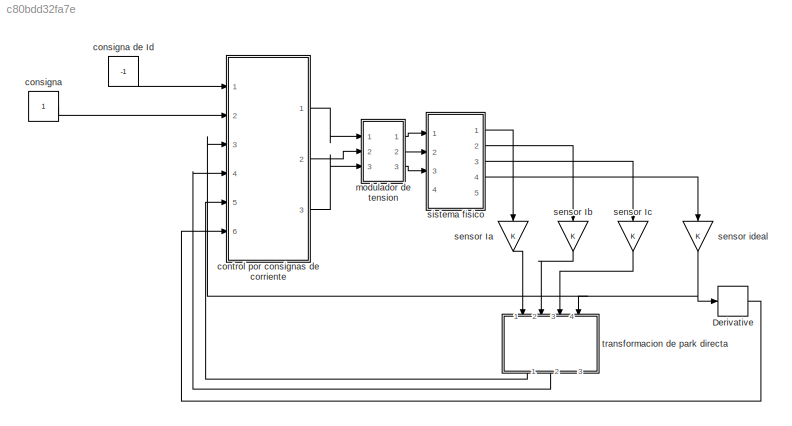
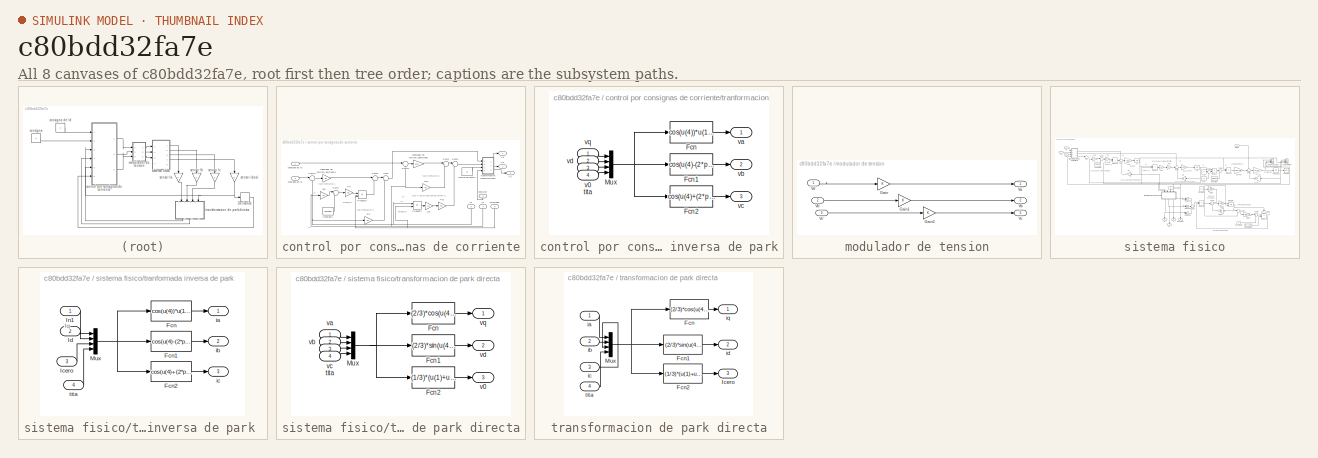
[diagram: thumbnail index - all 8 canvases of the model, root first then tree order]
MODEL slx_c80bdd32fa7e
KIND model
BLOCK [Derivative] Derivative
BLOCK [Constant] consigna
BLOCK [Constant] consigna de Id
  Value = -1
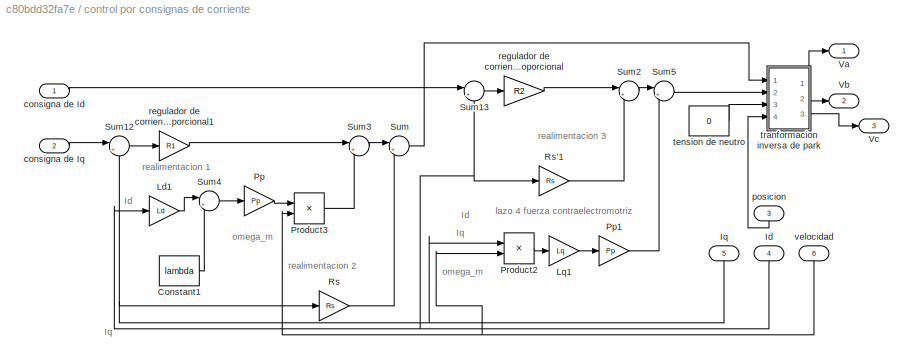
BLOCK [SubSystem] control por consignas de corriente
  FunctionWithSeparateData = off
  MaskHideContents = off
  MinAlgLoopOccurrences = off
  Opaque = off
  Ports = [6, 3]
  PropExecContextOutsideSubsystem = off
  RTWSystemCode = Auto
  RequestExecContextInheritance = off
BLOCK [Constant] control por consignas de corriente/Constant1
  Value = lambda
BLOCK [Inport] control por consignas de corriente/Id
  IconDisplay = Port number
  Port = 4
BLOCK [Inport] control por consignas de corriente/Iq
  IconDisplay = Port number
  Port = 5
BLOCK [Gain] control por consignas de corriente/Ld1
  Gain = Ld
  OutDataTypeStr = Inherit: Inherit via internal rule
  ParamDataTypeStr = Inherit: Inherit via internal rule
  SaturateOnIntegerOverflow = off
BLOCK [Gain] control por consignas de corriente/Lq1
  Gain = Lq
  OutDataTypeStr = Inherit: Inherit via internal rule
  ParamDataTypeStr = Inherit: Inherit via internal rule
  SaturateOnIntegerOverflow = off
BLOCK [Gain] control por consignas de corriente/Pp
  Gain = Pp
  OutDataTypeStr = Inherit: Inherit via internal rule
  ParamDataTypeStr = Inherit: Inherit via internal rule
  SaturateOnIntegerOverflow = off
BLOCK [Gain] control por consignas de corriente/Pp1
  Gain = Pp
  OutDataTypeStr = Inherit: Inherit via internal rule
  ParamDataTypeStr = Inherit: Inherit via internal rule
  SaturateOnIntegerOverflow = off
BLOCK [Product] control por consignas de corriente/Product2
  InputSameDT = off
  OutDataTypeStr = Inherit: Inherit via internal rule
  Ports = [2, 1]
  SaturateOnIntegerOverflow = off
BLOCK [Product] control por consignas de corriente/Product3
  InputSameDT = off
  OutDataTypeStr = Inherit: Inherit via internal rule
  Ports = [2, 1]
  SaturateOnIntegerOverflow = off
BLOCK [Gain] control por consignas de corriente/Rs
  Gain = Rs
  OutDataTypeStr = Inherit: Inherit via internal rule
  ParamDataTypeStr = Inherit: Inherit via internal rule
  SaturateOnIntegerOverflow = off
BLOCK [Gain] control por consignas de corriente/Rs'1
  Gain = Rs
  OutDataTypeStr = Inherit: Inherit via internal rule
  ParamDataTypeStr = Inherit: Inherit via internal rule
  SaturateOnIntegerOverflow = off
BLOCK [Sum] control por consignas de corriente/Sum
  IconShape = round
  InputSameDT = off
  Inputs = |++
  OutDataTypeStr = Inherit: Inherit via internal rule
  Ports = [2, 1]
  SaturateOnIntegerOverflow = off
BLOCK [Sum] control por consignas de corriente/Sum12
  IconShape = round
  InputSameDT = off
  Inputs = |+-
  OutDataTypeStr = Inherit: Inherit via internal rule
  Ports = [2, 1]
  SaturateOnIntegerOverflow = off
BLOCK [Sum] control por consignas de corriente/Sum13
  IconShape = round
  InputSameDT = off
  Inputs = |+-
  OutDataTypeStr = Inherit: Inherit via internal rule
  Ports = [2, 1]
  SaturateOnIntegerOverflow = off
BLOCK [Sum] control por consignas de corriente/Sum2
  IconShape = round
  InputSameDT = off
  Inputs = |++
  OutDataTypeStr = Inherit: Inherit via internal rule
  Ports = [2, 1]
  SaturateOnIntegerOverflow = off
BLOCK [Sum] control por consignas de corriente/Sum3
  IconShape = round
  InputSameDT = off
  Inputs = |++
  OutDataTypeStr = Inherit: Inherit via internal rule
  Ports = [2, 1]
  SaturateOnIntegerOverflow = off
BLOCK [Sum] control por consignas de corriente/Sum4
  IconShape = round
  InputSameDT = off
  Inputs = |++
  OutDataTypeStr = Inherit: Inherit via internal rule
  Ports = [2, 1]
  SaturateOnIntegerOverflow = off
BLOCK [Sum] control por consignas de corriente/Sum5
  IconShape = round
  InputSameDT = off
  Inputs = |+-
  OutDataTypeStr = Inherit: Inherit via internal rule
  Ports = [2, 1]
  SaturateOnIntegerOverflow = off
BLOCK [Outport] control por consignas de corriente/Va
  IconDisplay = Port number
BLOCK [Outport] control por consignas de corriente/Vb
  IconDisplay = Port number
  Port = 2
BLOCK [Outport] control por consignas de corriente/Vc
  IconDisplay = Port number
  Port = 3
BLOCK [Inport] control por consignas de corriente/consigna de Id
  IconDisplay = Port number
BLOCK [Inport] control por consignas de corriente/consigna de Iq
  IconDisplay = Port number
  Port = 2
BLOCK [Inport] control por consignas de corriente/posicion
  IconDisplay = Port number
  Port = 3
BLOCK [Gain] control por consignas de corriente/regulador de corriente ganacia proporcional
  Gain = R2
  OutDataTypeStr = Inherit: Inherit via internal rule
  ParamDataTypeStr = Inherit: Inherit via internal rule
  SaturateOnIntegerOverflow = off
BLOCK [Gain] control por consignas de corriente/regulador de corriente ganacia proporcional1
  Gain = R1
  OutDataTypeStr = Inherit: Inherit via internal rule
  ParamDataTypeStr = Inherit: Inherit via internal rule
  SaturateOnIntegerOverflow = off
BLOCK [Constant] control por consignas de corriente/tension de neutro
  Value = 0
BLOCK [SubSystem] control por consignas de corriente/tranformacion inversa de park
  FunctionWithSeparateData = off
  MaskHideContents = off
  MinAlgLoopOccurrences = off
  Opaque = off
  Ports = [4, 3]
  PropExecContextOutsideSubsystem = off
  RTWSystemCode = Auto
  RequestExecContextInheritance = off
BLOCK [Fcn] control por consignas de corriente/tranformacion inversa de park/Fcn
  Expr = cos(u(4))*u(1)+sin(u(4))*u(2)+u(3)
BLOCK [Fcn] control por consignas de corriente/tranformacion inversa de park/Fcn1
  Expr = cos(u(4)-(2*pi/3))*u(1)+sin(u(4)-(2*pi/3))*u(2)+u(3)
BLOCK [Fcn] control por consignas de corriente/tranformacion inversa de park/Fcn2
  Expr = cos(u(4)+(2*pi/3))*u(1)+sin(u(4)+(2*pi/3))*u(2)+u(3)
BLOCK [Mux] control por consignas de corriente/tranformacion inversa de park/Mux
  DisplayOption = bar
  Ports = [4, 1]
BLOCK [Inport] control por consignas de corriente/tranformacion inversa de park/tita
  IconDisplay = Port number
  Port = 4
BLOCK [Inport] control por consignas de corriente/tranformacion inversa de park/v0
  IconDisplay = Port number
  Port = 3
BLOCK [Outport] control por consignas de corriente/tranformacion inversa de park/va
  IconDisplay = Port number
BLOCK [Outport] control por consignas de corriente/tranformacion inversa de park/vb
  IconDisplay = Port number
  Port = 2
BLOCK [Outport] control por consignas de corriente/tranformacion inversa de park/vc
  IconDisplay = Port number
  Port = 3
BLOCK [Inport] control por consignas de corriente/tranformacion inversa de park/vd
  IconDisplay = Port number
  Port = 2
BLOCK [Inport] control por consignas de corriente/tranformacion inversa de park/vq
  IconDisplay = Port number
BLOCK [Inport] control por consignas de corriente/velocidad
  IconDisplay = Port number
  Port = 6
BLOCK [SubSystem] modulador de tension
  FunctionWithSeparateData = off
  MaskHideContents = off
  MinAlgLoopOccurrences = off
  Opaque = off
  Ports = [3, 3]
  PropExecContextOutsideSubsystem = off
  RTWSystemCode = Auto
  RequestExecContextInheritance = off
BLOCK [Gain] modulador de tension/Gain
  OutDataTypeStr = Inherit: Inherit via internal rule
  ParamDataTypeStr = Inherit: Inherit via internal rule
  SaturateOnIntegerOverflow = off
BLOCK [Gain] modulador de tension/Gain1
  OutDataTypeStr = Inherit: Inherit via internal rule
  ParamDataTypeStr = Inherit: Inherit via internal rule
  SaturateOnIntegerOverflow = off
BLOCK [Gain] modulador de tension/Gain2
  OutDataTypeStr = Inherit: Inherit via internal rule
  ParamDataTypeStr = Inherit: Inherit via internal rule
  SaturateOnIntegerOverflow = off
BLOCK [Outport] modulador de tension/Va
  IconDisplay = Port number
BLOCK [Inport] modulador de tension/Va'
  IconDisplay = Port number
BLOCK [Outport] modulador de tension/Vb
  IconDisplay = Port number
  Port = 2
BLOCK [Inport] modulador de tension/Vb'
  IconDisplay = Port number
  Port = 2
BLOCK [Outport] modulador de tension/Vc
  IconDisplay = Port number
  Port = 3
BLOCK [Inport] modulador de tension/Vc'
  IconDisplay = Port number
  Port = 3
BLOCK [Gain] sensor Ia
  OutDataTypeStr = Inherit: Inherit via internal rule
  ParamDataTypeStr = Inherit: Inherit via internal rule
  SaturateOnIntegerOverflow = off
BLOCK [Gain] sensor Ib
  OutDataTypeStr = Inherit: Inherit via internal rule
  ParamDataTypeStr = Inherit: Inherit via internal rule
  SaturateOnIntegerOverflow = off
BLOCK [Gain] sensor Ic
  OutDataTypeStr = Inherit: Inherit via internal rule
  ParamDataTypeStr = Inherit: Inherit via internal rule
  SaturateOnIntegerOverflow = off
BLOCK [Gain] sensor ideal
  OutDataTypeStr = Inherit: Inherit via internal rule
  ParamDataTypeStr = Inherit: Inherit via internal rule
  SaturateOnIntegerOverflow = off
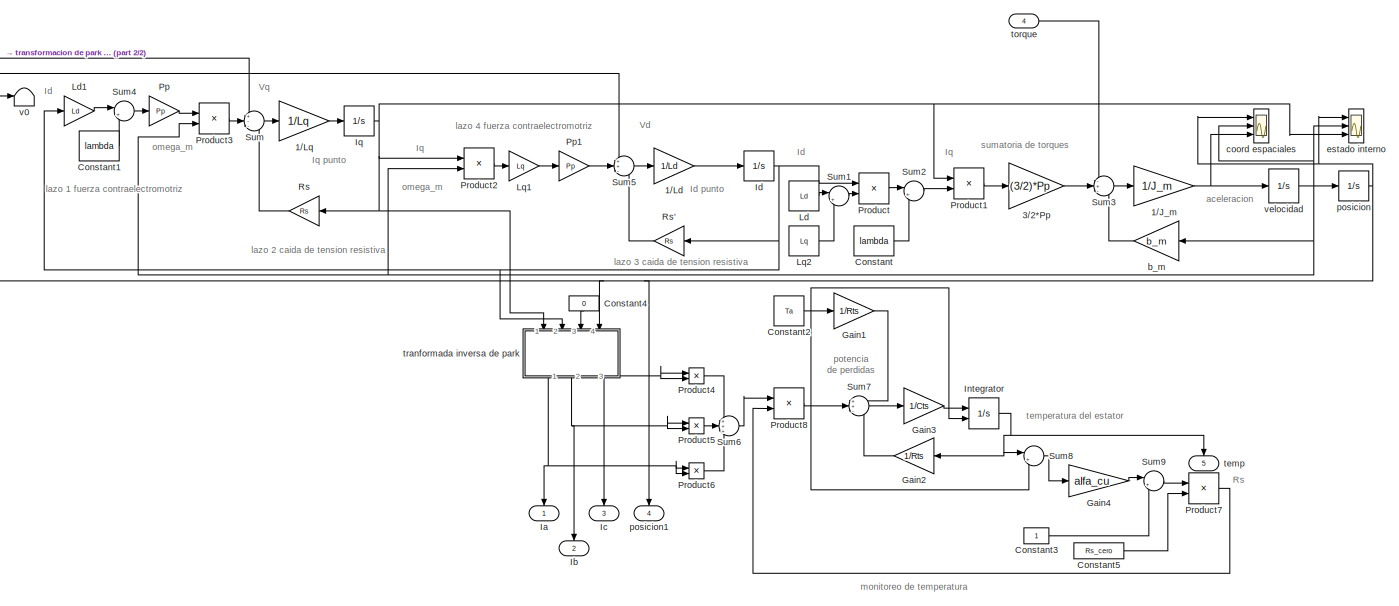
[diagram: sistema fisico - part 1/2, most of the canvas]
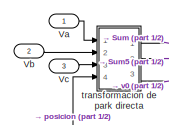
[diagram: sistema fisico - part 2/2, top left region]
BLOCK [SubSystem] sistema fisico
  FunctionWithSeparateData = off
  MaskHideContents = off
  MinAlgLoopOccurrences = off
  Opaque = off
  Ports = [4, 5]
  PropExecContextOutsideSubsystem = off
  RTWSystemCode = Auto
  RequestExecContextInheritance = off
BLOCK [Gain] sistema fisico/1//J_m
  Gain = 1/J_m
  OutDataTypeStr = Inherit: Inherit via internal rule
  ParamDataTypeStr = Inherit: Inherit via internal rule
  SaturateOnIntegerOverflow = off
BLOCK [Gain] sistema fisico/1//Ld
  Gain = 1/Ld
  OutDataTypeStr = Inherit: Inherit via internal rule
  ParamDataTypeStr = Inherit: Inherit via internal rule
  SaturateOnIntegerOverflow = off
BLOCK [Gain] sistema fisico/1//Lq
  Gain = 1/Lq
  OutDataTypeStr = Inherit: Inherit via internal rule
  ParamDataTypeStr = Inherit: Inherit via internal rule
  SaturateOnIntegerOverflow = off
BLOCK [Gain] sistema fisico/3//2*Pp
  Gain = (3/2)*Pp
  OutDataTypeStr = Inherit: Inherit via internal rule
  ParamDataTypeStr = Inherit: Inherit via internal rule
  SaturateOnIntegerOverflow = off
BLOCK [Constant] sistema fisico/Constant
  Value = lambda
BLOCK [Constant] sistema fisico/Constant1
  Value = lambda
BLOCK [Constant] sistema fisico/Constant2
  Value = Ta
BLOCK [Constant] sistema fisico/Constant3
BLOCK [Constant] sistema fisico/Constant4
  Value = 0
BLOCK [Constant] sistema fisico/Constant5
  Value = Rs_cero
BLOCK [Gain] sistema fisico/Gain1
  Gain = 1/Rts
  OutDataTypeStr = Inherit: Inherit via internal rule
  ParamDataTypeStr = Inherit: Inherit via internal rule
  SaturateOnIntegerOverflow = off
BLOCK [Gain] sistema fisico/Gain2
  Gain = 1/Rts
  OutDataTypeStr = Inherit: Inherit via internal rule
  ParamDataTypeStr = Inherit: Inherit via internal rule
  SaturateOnIntegerOverflow = off
BLOCK [Gain] sistema fisico/Gain3
  Gain = 1/Cts
  OutDataTypeStr = Inherit: Inherit via internal rule
  ParamDataTypeStr = Inherit: Inherit via internal rule
  SaturateOnIntegerOverflow = off
BLOCK [Gain] sistema fisico/Gain4
  Gain = alfa_cu
  OutDataTypeStr = Inherit: Inherit via internal rule
  ParamDataTypeStr = Inherit: Inherit via internal rule
  SaturateOnIntegerOverflow = off
BLOCK [Outport] sistema fisico/Ia
  IconDisplay = Port number
BLOCK [Outport] sistema fisico/Ib
  IconDisplay = Port number
  Port = 2
BLOCK [Outport] sistema fisico/Ic
  IconDisplay = Port number
  Port = 3
BLOCK [Integrator] sistema fisico/Id
  Ports = [1, 1]
BLOCK [Integrator] sistema fisico/Integrator
  InitialConditionSource = external
  Ports = [2, 1]
BLOCK [Integrator] sistema fisico/Iq
  Ports = [1, 1]
BLOCK [Constant] sistema fisico/Ld
  Value = Ld
BLOCK [Gain] sistema fisico/Ld1
  Gain = Ld
  OutDataTypeStr = Inherit: Inherit via internal rule
  ParamDataTypeStr = Inherit: Inherit via internal rule
  SaturateOnIntegerOverflow = off
BLOCK [Gain] sistema fisico/Lq1
  Gain = Lq
  OutDataTypeStr = Inherit: Inherit via internal rule
  ParamDataTypeStr = Inherit: Inherit via internal rule
  SaturateOnIntegerOverflow = off
BLOCK [Constant] sistema fisico/Lq2
  Value = Lq
BLOCK [Gain] sistema fisico/Pp
  Gain = Pp
  OutDataTypeStr = Inherit: Inherit via internal rule
  ParamDataTypeStr = Inherit: Inherit via internal rule
  SaturateOnIntegerOverflow = off
BLOCK [Gain] sistema fisico/Pp1
  Gain = Pp
  OutDataTypeStr = Inherit: Inherit via internal rule
  ParamDataTypeStr = Inherit: Inherit via internal rule
  SaturateOnIntegerOverflow = off
BLOCK [Product] sistema fisico/Product
  InputSameDT = off
  OutDataTypeStr = Inherit: Inherit via internal rule
  Ports = [2, 1]
  SaturateOnIntegerOverflow = off
BLOCK [Product] sistema fisico/Product1
  InputSameDT = off
  OutDataTypeStr = Inherit: Inherit via internal rule
  Ports = [2, 1]
  SaturateOnIntegerOverflow = off
BLOCK [Product] sistema fisico/Product2
  InputSameDT = off
  OutDataTypeStr = Inherit: Inherit via internal rule
  Ports = [2, 1]
  SaturateOnIntegerOverflow = off
BLOCK [Product] sistema fisico/Product3
  InputSameDT = off
  OutDataTypeStr = Inherit: Inherit via internal rule
  Ports = [2, 1]
  SaturateOnIntegerOverflow = off
BLOCK [Product] sistema fisico/Product4
  InputSameDT = off
  OutDataTypeStr = Inherit: Inherit via internal rule
  Ports = [2, 1]
  SaturateOnIntegerOverflow = off
BLOCK [Product] sistema fisico/Product5
  InputSameDT = off
  OutDataTypeStr = Inherit: Inherit via internal rule
  Ports = [2, 1]
  SaturateOnIntegerOverflow = off
BLOCK [Product] sistema fisico/Product6
  InputSameDT = off
  OutDataTypeStr = Inherit: Inherit via internal rule
  Ports = [2, 1]
  SaturateOnIntegerOverflow = off
BLOCK [Product] sistema fisico/Product7
  InputSameDT = off
  OutDataTypeStr = Inherit: Inherit via internal rule
  Ports = [2, 1]
  SaturateOnIntegerOverflow = off
BLOCK [Product] sistema fisico/Product8
  InputSameDT = off
  OutDataTypeStr = Inherit: Inherit via internal rule
  Ports = [2, 1]
  SaturateOnIntegerOverflow = off
BLOCK [Gain] sistema fisico/Rs
  Gain = Rs
  OutDataTypeStr = Inherit: Inherit via internal rule
  ParamDataTypeStr = Inherit: Inherit via internal rule
  SaturateOnIntegerOverflow = off
BLOCK [Gain] sistema fisico/Rs'
  Gain = Rs
  OutDataTypeStr = Inherit: Inherit via internal rule
  ParamDataTypeStr = Inherit: Inherit via internal rule
  SaturateOnIntegerOverflow = off
BLOCK [Sum] sistema fisico/Sum
  IconShape = round
  InputSameDT = off
  Inputs = +--
  OutDataTypeStr = Inherit: Inherit via internal rule
  Ports = [3, 1]
  SaturateOnIntegerOverflow = off
BLOCK [Sum] sistema fisico/Sum1
  IconShape = round
  InputSameDT = off
  Inputs = |+-
  OutDataTypeStr = Inherit: Inherit via internal rule
  Ports = [2, 1]
  SaturateOnIntegerOverflow = off
BLOCK [Sum] sistema fisico/Sum2
  IconShape = round
  InputSameDT = off
  Inputs = |++
  OutDataTypeStr = Inherit: Inherit via internal rule
  Ports = [2, 1]
  SaturateOnIntegerOverflow = off
BLOCK [Sum] sistema fisico/Sum3
  IconShape = round
  InputSameDT = off
  Inputs = -+-
  OutDataTypeStr = Inherit: Inherit via internal rule
  Ports = [3, 1]
  SaturateOnIntegerOverflow = off
BLOCK [Sum] sistema fisico/Sum4
  IconShape = round
  InputSameDT = off
  Inputs = |++
  OutDataTypeStr = Inherit: Inherit via internal rule
  Ports = [2, 1]
  SaturateOnIntegerOverflow = off
BLOCK [Sum] sistema fisico/Sum5
  IconShape = round
  InputSameDT = off
  Inputs = ++-
  OutDataTypeStr = Inherit: Inherit via internal rule
  Ports = [3, 1]
  SaturateOnIntegerOverflow = off
BLOCK [Sum] sistema fisico/Sum6
  IconShape = round
  InputSameDT = off
  Inputs = +++
  OutDataTypeStr = Inherit: Inherit via internal rule
  Ports = [3, 1]
  SaturateOnIntegerOverflow = off
BLOCK [Sum] sistema fisico/Sum7
  IconShape = round
  InputSameDT = off
  Inputs = ++-
  OutDataTypeStr = Inherit: Inherit via internal rule
  Ports = [3, 1]
  SaturateOnIntegerOverflow = off
BLOCK [Sum] sistema fisico/Sum8
  IconShape = round
  InputSameDT = off
  Inputs = |+-
  OutDataTypeStr = Inherit: Inherit via internal rule
  Ports = [2, 1]
  SaturateOnIntegerOverflow = off
BLOCK [Sum] sistema fisico/Sum9
  IconShape = round
  InputSameDT = off
  Inputs = |++
  OutDataTypeStr = Inherit: Inherit via internal rule
  Ports = [2, 1]
  SaturateOnIntegerOverflow = off
BLOCK [Inport] sistema fisico/Va
  IconDisplay = Port number
BLOCK [Inport] sistema fisico/Vb
  IconDisplay = Port number
  Port = 2
BLOCK [Inport] sistema fisico/Vc
  IconDisplay = Port number
  Port = 3
BLOCK [Gain] sistema fisico/b_m
  Gain = b_m
  OutDataTypeStr = Inherit: Inherit via internal rule
  ParamDataTypeStr = Inherit: Inherit via internal rule
  SaturateOnIntegerOverflow = off
BLOCK [Scope] sistema fisico/coord espaciales
  DataFormat = StructureWithTime
  Floating = off
  LimitDataPoints = off
  MaxDataPoints = 8000
  NumInputPorts = 3
  Ports = [3]
  SampleTime = 0
  SaveName = ScopeData1
  ShowLegends = off
  TimeRange = 12
  YMax = 3000~300~100000
  YMin = -1000~0~-50000
  ZoomMode = xonly
BLOCK [Scope] sistema fisico/estado interno
  DataFormat = StructureWithTime
  Floating = off
  LimitDataPoints = off
  MaxDataPoints = 8000
  NumInputPorts = 3
  Ports = [3]
  SampleTime = 0
  ShowLegends = off
  TimeRange = 10
  YMax = 6000~600~10
  YMin = -2000~0~-5
  ZoomMode = yonly
BLOCK [Integrator] sistema fisico/posicion
  Ports = [1, 1]
BLOCK [Outport] sistema fisico/posicion1
  IconDisplay = Port number
  Port = 4
BLOCK [Outport] sistema fisico/temp
  IconDisplay = Port number
  Port = 5
BLOCK [Inport] sistema fisico/torque
  IconDisplay = Port number
  Port = 4
BLOCK [SubSystem] sistema fisico/tranformada inversa de park 
  FunctionWithSeparateData = off
  MaskHideContents = off
  MinAlgLoopOccurrences = off
  Opaque = off
  Ports = [4, 3]
  PropExecContextOutsideSubsystem = off
  RTWSystemCode = Auto
  RequestExecContextInheritance = off
BLOCK [Fcn] sistema fisico/tranformada inversa de park /Fcn
  Expr = cos(u(4))*u(1)+sin(u(4))*u(2)+u(3)
BLOCK [Fcn] sistema fisico/tranformada inversa de park /Fcn1
  Expr = cos(u(4)-(2*pi/3))*u(1)+sin(u(4)-(2*pi/3))*u(2)+u(3)
BLOCK [Fcn] sistema fisico/tranformada inversa de park /Fcn2
  Expr = cos(u(4)+(2*pi/3))*u(1)+sin(u(4)+(2*pi/3))*u(2)+u(3)
BLOCK [Inport] sistema fisico/tranformada inversa de park /Icero
  IconDisplay = Port number
  Port = 3
BLOCK [Inport] sistema fisico/tranformada inversa de park /Id
  IconDisplay = Port number
  Port = 2
BLOCK [Inport] sistema fisico/tranformada inversa de park /In1
  IconDisplay = Port number
BLOCK [Mux] sistema fisico/tranformada inversa de park /Mux
  DisplayOption = bar
  Ports = [4, 1]
BLOCK [Outport] sistema fisico/tranformada inversa de park /ia
  IconDisplay = Port number
BLOCK [Outport] sistema fisico/tranformada inversa de park /ib
  IconDisplay = Port number
  Port = 2
BLOCK [Outport] sistema fisico/tranformada inversa de park /ic
  IconDisplay = Port number
  Port = 3
BLOCK [Inport] sistema fisico/tranformada inversa de park /tita
  IconDisplay = Port number
  Port = 4
BLOCK [SubSystem] sistema fisico/transformacion de park directa
  FunctionWithSeparateData = off
  MaskHideContents = off
  MinAlgLoopOccurrences = off
  Opaque = off
  Ports = [4, 3]
  PropExecContextOutsideSubsystem = off
  RTWSystemCode = Auto
  RequestExecContextInheritance = off
BLOCK [Fcn] sistema fisico/transformacion de park directa/Fcn
  Expr = (2/3)*cos(u(4))*u(1)+(2/3)*cos(u(4)-(2*pi/3))*u(2)+(2/3)*cos(u(4)+(2*pi/3))*u(3)
BLOCK [Fcn] sistema fisico/transformacion de park directa/Fcn1
  Expr = (2/3)*sin(u(4))*u(1)+(2/3)*sin(u(4)-(2*pi/3))*u(2)+(2/3)*sin(u(4)+(2*pi/3))*u(3)
BLOCK [Fcn] sistema fisico/transformacion de park directa/Fcn2
  Expr = (1/3)*(u(1)+u(2)+u(3))
BLOCK [Mux] sistema fisico/transformacion de park directa/Mux
  DisplayOption = bar
  Ports = [4, 1]
BLOCK [Inport] sistema fisico/transformacion de park directa/tita
  IconDisplay = Port number
  Port = 4
BLOCK [Outport] sistema fisico/transformacion de park directa/v0
  IconDisplay = Port number
  Port = 3
BLOCK [Inport] sistema fisico/transformacion de park directa/va
  IconDisplay = Port number
BLOCK [Inport] sistema fisico/transformacion de park directa/vb
  IconDisplay = Port number
  Port = 2
BLOCK [Inport] sistema fisico/transformacion de park directa/vc
  IconDisplay = Port number
  Port = 3
BLOCK [Outport] sistema fisico/transformacion de park directa/vd
  IconDisplay = Port number
  Port = 2
BLOCK [Outport] sistema fisico/transformacion de park directa/vq
  IconDisplay = Port number
BLOCK [Terminator] sistema fisico/v0
BLOCK [Integrator] sistema fisico/velocidad
  ContinuousStateAttributes = 'velocidad'
  Ports = [1, 1]
BLOCK [SubSystem] transformacion de park directa
  FunctionWithSeparateData = off
  MaskHideContents = off
  MinAlgLoopOccurrences = off
  Opaque = off
  Ports = [4, 3]
  PropExecContextOutsideSubsystem = off
  RTWSystemCode = Auto
  RequestExecContextInheritance = off
BLOCK [Fcn] transformacion de park directa/Fcn
  Expr = (2/3)*cos(u(4))*u(1)+(2/3)*cos(u(4)-(2*pi/3))*u(2)+(2/3)*cos(u(4)+(2*pi/3))*u(3)
BLOCK [Fcn] transformacion de park directa/Fcn1
  Expr = (2/3)*sin(u(4))*u(1)+(2/3)*sin(u(4)-(2*pi/3))*u(2)+(2/3)*sin(u(4)+(2*pi/3))*u(3)
BLOCK [Fcn] transformacion de park directa/Fcn2
  Expr = (1/3)*(u(1)+u(2)+u(3))
BLOCK [Outport] transformacion de park directa/Icero
  IconDisplay = Port number
  Port = 3
BLOCK [Mux] transformacion de park directa/Mux
  DisplayOption = bar
  Ports = [4, 1]
BLOCK [Inport] transformacion de park directa/ia
  IconDisplay = Port number
BLOCK [Inport] transformacion de park directa/ib
  IconDisplay = Port number
  Port = 2
BLOCK [Inport] transformacion de park directa/ic
  IconDisplay = Port number
  Port = 3
BLOCK [Outport] transformacion de park directa/id
  IconDisplay = Port number
  Port = 2
BLOCK [Outport] transformacion de park directa/iq
  IconDisplay = Port number
BLOCK [Inport] transformacion de park directa/tita
  IconDisplay = Port number
  Port = 4
ANNOTATION control por consignas de corriente: Id
ANNOTATION control por consignas de corriente: Iq
ANNOTATION control por consignas de corriente: lazo 4 fuerza contraelectromotriz
ANNOTATION control por consignas de corriente: omega_m
ANNOTATION control por consignas de corriente: realimentacion 1
ANNOTATION control por consignas de corriente: realimentacion 2
ANNOTATION control por consignas de corriente: realimentacion 3
ANNOTATION sistema fisico: Id
ANNOTATION sistema fisico: Id punto
ANNOTATION sistema fisico: Iq
ANNOTATION sistema fisico: Iq punto
ANNOTATION sistema fisico: Rs
ANNOTATION sistema fisico: Vd
ANNOTATION sistema fisico: Vq
ANNOTATION sistema fisico: aceleracion
ANNOTATION sistema fisico: lazo 1 fuerza contraelectromotriz
ANNOTATION sistema fisico: lazo 2 caida de tension resistiva
ANNOTATION sistema fisico: lazo 3 caida de tension resistiva
ANNOTATION sistema fisico: lazo 4 fuerza contraelectromotriz
ANNOTATION sistema fisico: monitoreo de temperatura
ANNOTATION sistema fisico: omega_m
ANNOTATION sistema fisico: potencia de perdidas
ANNOTATION sistema fisico: sumatoria de torques
ANNOTATION sistema fisico: temperatura del estator
ANNOTATION sistema fisico/tranformada inversa de park : Iq
LINE Derivative:1 -> control por consignas de corriente:6
LINE consigna de Id:1 -> control por consignas de corriente:1
LINE consigna:1 -> control por consignas de corriente:2
LINE control por consignas de corriente/Constant1:1 -> control por consignas de corriente/Sum4:2
NET control por consignas de corriente/Id:1 -> control por consignas de corriente/Ld1:1, control por consignas de corriente/Rs'1:1, control por consignas de corriente/Sum13:2
NET control por consignas de corriente/Iq:1 -> control por consignas de corriente/Product2:1, control por consignas de corriente/Rs:1, control por consignas de corriente/Sum12:2
LINE control por consignas de corriente/Ld1:1 -> control por consignas de corriente/Sum4:1
LINE control por consignas de corriente/Lq1:1 -> control por consignas de corriente/Pp1:1
LINE control por consignas de corriente/Pp1:1 -> control por consignas de corriente/Sum5:2
LINE control por consignas de corriente/Pp:1 -> control por consignas de corriente/Product3:1
LINE control por consignas de corriente/Product2:1 -> control por consignas de corriente/Lq1:1
LINE control por consignas de corriente/Product3:1 -> control por consignas de corriente/Sum3:2
LINE control por consignas de corriente/Rs'1:1 -> control por consignas de corriente/Sum2:2
LINE control por consignas de corriente/Rs:1 -> control por consignas de corriente/Sum:2
LINE control por consignas de corriente/Sum12:1 -> control por consignas de corriente/regulador de corriente ganacia proporcional1:1
LINE control por consignas de corriente/Sum13:1 -> control por consignas de corriente/regulador de corriente ganacia proporcional:1
LINE control por consignas de corriente/Sum2:1 -> control por consignas de corriente/Sum5:1
LINE control por consignas de corriente/Sum3:1 -> control por consignas de corriente/Sum:1
LINE control por consignas de corriente/Sum4:1 -> control por consignas de corriente/Pp:1
LINE control por consignas de corriente/Sum5:1 -> control por consignas de corriente/tranformacion inversa de park:2
LINE control por consignas de corriente/Sum:1 -> control por consignas de corriente/tranformacion inversa de park:1
LINE control por consignas de corriente/consigna de Id:1 -> control por consignas de corriente/Sum13:1
LINE control por consignas de corriente/consigna de Iq:1 -> control por consignas de corriente/Sum12:1
LINE control por consignas de corriente/posicion:1 -> control por consignas de corriente/tranformacion inversa de park:4
LINE control por consignas de corriente/regulador de corriente ganacia proporcional1:1 -> control por consignas de corriente/Sum3:1
LINE control por consignas de corriente/regulador de corriente ganacia proporcional:1 -> control por consignas de corriente/Sum2:1
LINE control por consignas de corriente/tension de neutro:1 -> control por consignas de corriente/tranformacion inversa de park:3
LINE control por consignas de corriente/tranformacion inversa de park/Fcn1:1 -> control por consignas de corriente/tranformacion inversa de park/vb:1
LINE control por consignas de corriente/tranformacion inversa de park/Fcn2:1 -> control por consignas de corriente/tranformacion inversa de park/vc:1
LINE control por consignas de corriente/tranformacion inversa de park/Fcn:1 -> control por consignas de corriente/tranformacion inversa de park/va:1
NET control por consignas de corriente/tranformacion inversa de park/Mux:1 -> control por consignas de corriente/tranformacion inversa de park/Fcn1:1, control por consignas de corriente/tranformacion inversa de park/Fcn2:1, control por consignas de corriente/tranformacion inversa de park/Fcn:1
LINE control por consignas de corriente/tranformacion inversa de park/tita:1 -> control por consignas de corriente/tranformacion inversa de park/Mux:4
LINE control por consignas de corriente/tranformacion inversa de park/v0:1 -> control por consignas de corriente/tranformacion inversa de park/Mux:3
LINE control por consignas de corriente/tranformacion inversa de park/vd:1 -> control por consignas de corriente/tranformacion inversa de park/Mux:2
LINE control por consignas de corriente/tranformacion inversa de park/vq:1 -> control por consignas de corriente/tranformacion inversa de park/Mux:1
LINE control por consignas de corriente/tranformacion inversa de park:1 -> control por consignas de corriente/Va:1
LINE control por consignas de corriente/tranformacion inversa de park:2 -> control por consignas de corriente/Vb:1
LINE control por consignas de corriente/tranformacion inversa de park:3 -> control por consignas de corriente/Vc:1
NET control por consignas de corriente/velocidad:1 -> control por consignas de corriente/Product2:2, control por consignas de corriente/Product3:2
LINE control por consignas de corriente:1 -> modulador de tension:1
LINE control por consignas de corriente:2 -> modulador de tension:2
LINE control por consignas de corriente:3 -> modulador de tension:3
LINE modulador de tension/Gain1:1 -> modulador de tension/Vb:1
LINE modulador de tension/Gain2:1 -> modulador de tension/Vc:1
LINE modulador de tension/Gain:1 -> modulador de tension/Va:1
LINE modulador de tension/Va':1 -> modulador de tension/Gain:1
LINE modulador de tension/Vb':1 -> modulador de tension/Gain1:1
LINE modulador de tension/Vc':1 -> modulador de tension/Gain2:1
LINE modulador de tension:1 -> sistema fisico:1
LINE modulador de tension:2 -> sistema fisico:2
LINE modulador de tension:3 -> sistema fisico:3
LINE sensor Ia:1 -> transformacion de park directa:1
LINE sensor Ib:1 -> transformacion de park directa:2
LINE sensor Ic:1 -> transformacion de park directa:3
NET sensor ideal:1 -> Derivative:1, control por consignas de corriente:3, transformacion de park directa:4
NET sistema fisico/1//J_m:1 -> sistema fisico/coord espaciales:3, sistema fisico/velocidad:1
LINE sistema fisico/1//Ld:1 -> sistema fisico/Id:1
LINE sistema fisico/1//Lq:1 -> sistema fisico/Iq:1
LINE sistema fisico/3//2*Pp:1 -> sistema fisico/Sum3:2
LINE sistema fisico/Constant1:1 -> sistema fisico/Sum4:2
NET sistema fisico/Constant2:1 -> sistema fisico/Gain1:1, sistema fisico/Integrator:2, sistema fisico/Sum8:2
LINE sistema fisico/Constant3:1 -> sistema fisico/Sum9:2
LINE sistema fisico/Constant4:1 -> sistema fisico/tranformada inversa de park :3
LINE sistema fisico/Constant5:1 -> sistema fisico/Product7:2
LINE sistema fisico/Constant:1 -> sistema fisico/Sum2:2
LINE sistema fisico/Gain1:1 -> sistema fisico/Sum7:1
LINE sistema fisico/Gain2:1 -> sistema fisico/Sum7:3
LINE sistema fisico/Gain3:1 -> sistema fisico/Integrator:1
LINE sistema fisico/Gain4:1 -> sistema fisico/Sum9:1
NET sistema fisico/Id:1 -> sistema fisico/Ld1:1, sistema fisico/Product:1, sistema fisico/Rs':1, sistema fisico/tranformada inversa de park :2
NET sistema fisico/Integrator:1 -> sistema fisico/Gain2:1, sistema fisico/Sum8:1, sistema fisico/temp:1
NET sistema fisico/Iq:1 -> sistema fisico/Product1:1, sistema fisico/Product2:1, sistema fisico/Rs:1, sistema fisico/estado interno:3, sistema fisico/tranformada inversa de park :1
LINE sistema fisico/Ld1:1 -> sistema fisico/Sum4:1
LINE sistema fisico/Ld:1 -> sistema fisico/Sum1:1
LINE sistema fisico/Lq1:1 -> sistema fisico/Pp1:1
LINE sistema fisico/Lq2:1 -> sistema fisico/Sum1:2
LINE sistema fisico/Pp1:1 -> sistema fisico/Sum5:2
LINE sistema fisico/Pp:1 -> sistema fisico/Product3:1
LINE sistema fisico/Product1:1 -> sistema fisico/3//2*Pp:1
LINE sistema fisico/Product2:1 -> sistema fisico/Lq1:1
LINE sistema fisico/Product3:1 -> sistema fisico/Sum:2
LINE sistema fisico/Product4:1 -> sistema fisico/Sum6:1
LINE sistema fisico/Product5:1 -> sistema fisico/Sum6:2
LINE sistema fisico/Product6:1 -> sistema fisico/Sum6:3
LINE sistema fisico/Product7:1 -> sistema fisico/Product8:2
LINE sistema fisico/Product8:1 -> sistema fisico/Sum7:2
LINE sistema fisico/Product:1 -> sistema fisico/Sum2:1
LINE sistema fisico/Rs':1 -> sistema fisico/Sum5:3
LINE sistema fisico/Rs:1 -> sistema fisico/Sum:3
LINE sistema fisico/Sum1:1 -> sistema fisico/Product:2
LINE sistema fisico/Sum2:1 -> sistema fisico/Product1:2
LINE sistema fisico/Sum3:1 -> sistema fisico/1//J_m:1
LINE sistema fisico/Sum4:1 -> sistema fisico/Pp:1
LINE sistema fisico/Sum5:1 -> sistema fisico/1//Ld:1
LINE sistema fisico/Sum6:1 -> sistema fisico/Product8:1
LINE sistema fisico/Sum7:1 -> sistema fisico/Gain3:1
LINE sistema fisico/Sum8:1 -> sistema fisico/Gain4:1
LINE sistema fisico/Sum9:1 -> sistema fisico/Product7:1
LINE sistema fisico/Sum:1 -> sistema fisico/1//Lq:1
LINE sistema fisico/Va:1 -> sistema fisico/transformacion de park directa:1
LINE sistema fisico/Vb:1 -> sistema fisico/transformacion de park directa:2
LINE sistema fisico/Vc:1 -> sistema fisico/transformacion de park directa:3
LINE sistema fisico/b_m:1 -> sistema fisico/Sum3:3
NET sistema fisico/posicion:1 -> sistema fisico/coord espaciales:1, sistema fisico/estado interno:1, sistema fisico/posicion1:1, sistema fisico/tranformada inversa de park :4, sistema fisico/transformacion de park directa:4
LINE sistema fisico/torque:1 -> sistema fisico/Sum3:1
LINE sistema fisico/tranformada inversa de park /Fcn1:1 -> sistema fisico/tranformada inversa de park /ib:1
LINE sistema fisico/tranformada inversa de park /Fcn2:1 -> sistema fisico/tranformada inversa de park /ic:1
LINE sistema fisico/tranformada inversa de park /Fcn:1 -> sistema fisico/tranformada inversa de park /ia:1
LINE sistema fisico/tranformada inversa de park /Icero:1 -> sistema fisico/tranformada inversa de park /Mux:3
LINE sistema fisico/tranformada inversa de park /Id:1 -> sistema fisico/tranformada inversa de park /Mux:2
LINE sistema fisico/tranformada inversa de park /In1:1 -> sistema fisico/tranformada inversa de park /Mux:1
NET sistema fisico/tranformada inversa de park /Mux:1 -> sistema fisico/tranformada inversa de park /Fcn1:1, sistema fisico/tranformada inversa de park /Fcn2:1, sistema fisico/tranformada inversa de park /Fcn:1
LINE sistema fisico/tranformada inversa de park /tita:1 -> sistema fisico/tranformada inversa de park /Mux:4
NET sistema fisico/tranformada inversa de park :1 -> sistema fisico/Ia:1, sistema fisico/Product6:1, sistema fisico/Product6:2
NET sistema fisico/tranformada inversa de park :2 -> sistema fisico/Ib:1, sistema fisico/Product5:1, sistema fisico/Product5:2
NET sistema fisico/tranformada inversa de park :3 -> sistema fisico/Ic:1, sistema fisico/Product4:1, sistema fisico/Product4:2
LINE sistema fisico/transformacion de park directa/Fcn1:1 -> sistema fisico/transformacion de park directa/vd:1
LINE sistema fisico/transformacion de park directa/Fcn2:1 -> sistema fisico/transformacion de park directa/v0:1
LINE sistema fisico/transformacion de park directa/Fcn:1 -> sistema fisico/transformacion de park directa/vq:1
NET sistema fisico/transformacion de park directa/Mux:1 -> sistema fisico/transformacion de park directa/Fcn1:1, sistema fisico/transformacion de park directa/Fcn2:1, sistema fisico/transformacion de park directa/Fcn:1
LINE sistema fisico/transformacion de park directa/tita:1 -> sistema fisico/transformacion de park directa/Mux:4
LINE sistema fisico/transformacion de park directa/va:1 -> sistema fisico/transformacion de park directa/Mux:1
LINE sistema fisico/transformacion de park directa/vb:1 -> sistema fisico/transformacion de park directa/Mux:2
LINE sistema fisico/transformacion de park directa/vc:1 -> sistema fisico/transformacion de park directa/Mux:3
LINE sistema fisico/transformacion de park directa:1 -> sistema fisico/Sum:1
LINE sistema fisico/transformacion de park directa:2 -> sistema fisico/Sum5:1
LINE sistema fisico/transformacion de park directa:3 -> sistema fisico/v0:1
NET sistema fisico/velocidad:1 -> sistema fisico/Product2:2, sistema fisico/Product3:2, sistema fisico/b_m:1, sistema fisico/coord espaciales:2, sistema fisico/estado interno:2, sistema fisico/posicion:1
LINE sistema fisico:1 -> sensor Ia:1
LINE sistema fisico:2 -> sensor Ib:1
LINE sistema fisico:3 -> sensor Ic:1
LINE sistema fisico:4 -> sensor ideal:1
LINE transformacion de park directa/Fcn1:1 -> transformacion de park directa/id:1
LINE transformacion de park directa/Fcn2:1 -> transformacion de park directa/Icero:1
LINE transformacion de park directa/Fcn:1 -> transformacion de park directa/iq:1
NET transformacion de park directa/Mux:1 -> transformacion de park directa/Fcn1:1, transformacion de park directa/Fcn2:1, transformacion de park directa/Fcn:1
LINE transformacion de park directa/ia:1 -> transformacion de park directa/Mux:1
LINE transformacion de park directa/ib:1 -> transformacion de park directa/Mux:2
LINE transformacion de park directa/ic:1 -> transformacion de park directa/Mux:3
LINE transformacion de park directa/tita:1 -> transformacion de park directa/Mux:4
LINE transformacion de park directa:1 -> control por consignas de corriente:5
LINE transformacion de park directa:2 -> control por consignas de corriente:4
note: NET lines group one-source signal fan-out (src -> all destinations, sorted); 1:1 wires keep LINE
